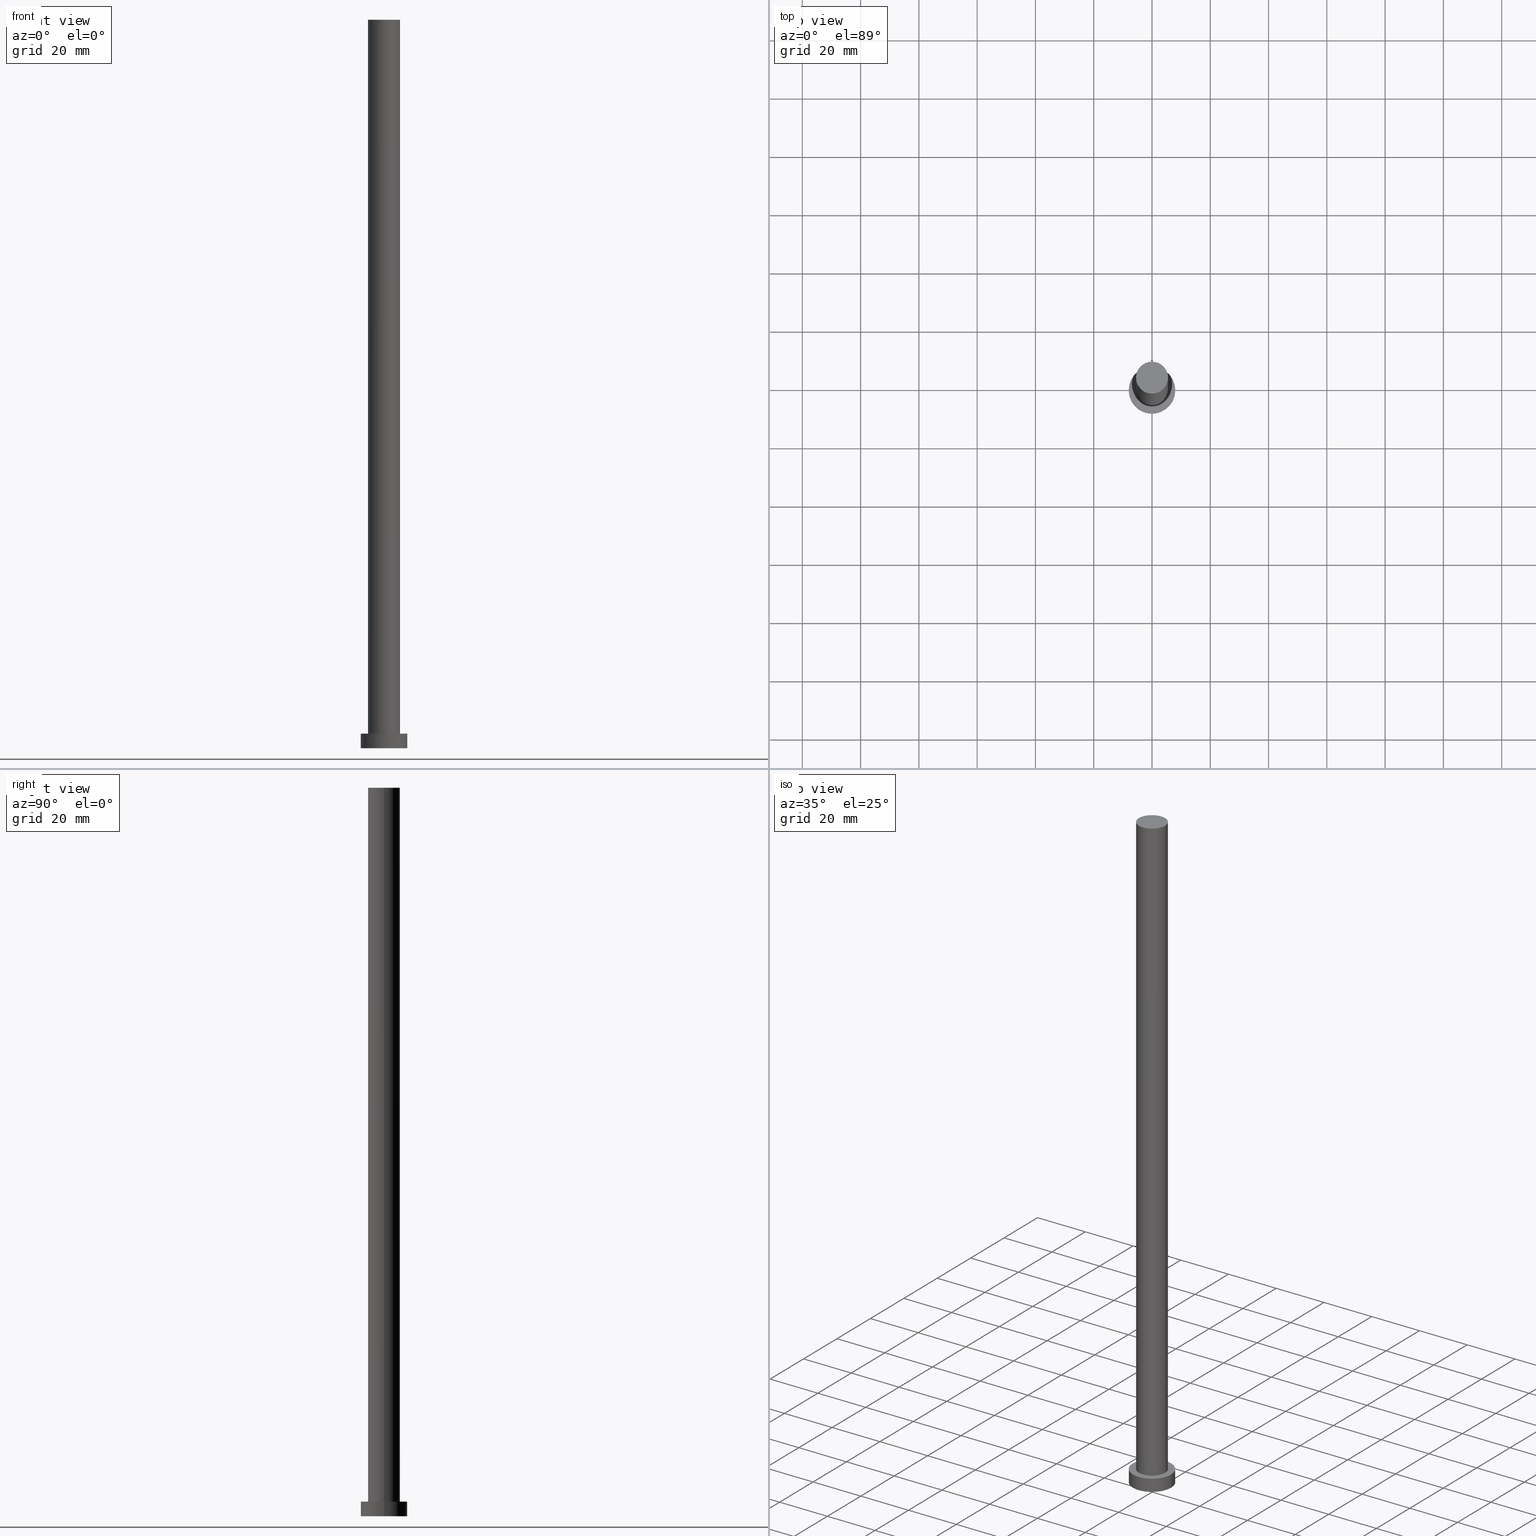
[diagram: canonical four-view strip — front | top / right | iso, engineering-drawing reading convention]
A machine part, canonical four-view strip (front | top / right | iso — engineering-drawing reading convention). The complete STEP part file that produces these views, byte-faithful:
ISO-10303-21;
HEADER;
FILE_DESCRIPTION (( 'STEP AP203' ),
    '1' );
FILE_NAME ('d49c.STEP',
    '2023-02-13T11:10:05',
    ( '' ),
    ( '' ),
    'SwSTEP 2.0',
    'SolidWorks 2019',
    '' );
FILE_SCHEMA (( 'CONFIG_CONTROL_DESIGN' ));
ENDSEC;

DATA;
#1 = AXIS2_PLACEMENT_3D ( 'NONE', #216, #196, #253 ) ;
#2 = COORDINATED_UNIVERSAL_TIME_OFFSET ( 1, 0, .AHEAD. ) ;
#3 = DIRECTION ( 'NONE',  ( -1.000000000000000000, 0.000000000000000000, 0.000000000000000000 ) ) ;
#4 = ADVANCED_FACE ( 'NONE', ( #192 ), #149, .F. ) ;
#5 = AXIS2_PLACEMENT_3D ( 'NONE', #110, #148, #72 ) ;
#6 = EDGE_CURVE ( 'NONE', #10, #141, #231, .T. ) ;
#7 = EDGE_LOOP ( 'NONE', ( #52, #203 ) ) ;
#8 = ORIENTED_EDGE ( 'NONE', *, *, #6, .T. ) ;
#9 = COORDINATED_UNIVERSAL_TIME_OFFSET ( 1, 0, .AHEAD. ) ;
#10 = VERTEX_POINT ( 'NONE', #59 ) ;
#11 = VERTEX_POINT ( 'NONE', #37 ) ;
#12 = CARTESIAN_POINT ( 'NONE',  ( -5.500000000000000000, 0.000000000000000000, 250.0000000000000000 ) ) ;
#13 = PRODUCT_DEFINITION_FORMATION_WITH_SPECIFIED_SOURCE ( 'LIBOVOLN�', '', #176, .NOT_KNOWN. ) ;
#14 = DIRECTION ( 'NONE',  ( 0.000000000000000000, 0.000000000000000000, 1.000000000000000000 ) ) ;
#15 = CARTESIAN_POINT ( 'NONE',  ( 8.000000000000000000, 9.797174393178825657E-16, 5.000000000000000000 ) ) ;
#16 = CYLINDRICAL_SURFACE ( 'NONE', #5, 5.500000000000000000 ) ;
#17 = AXIS2_PLACEMENT_3D ( 'NONE', #252, #206, #226 ) ;
#18 = CC_DESIGN_SECURITY_CLASSIFICATION ( #36, ( #13 ) ) ;
#19 = DIRECTION ( 'NONE',  ( -0.000000000000000000, -0.000000000000000000, -1.000000000000000000 ) ) ;
#20 = APPROVAL_ROLE ( '' ) ;
#21 = AXIS2_PLACEMENT_3D ( 'NONE', #93, #177, #207 ) ;
#22 = APPROVAL_PERSON_ORGANIZATION ( #200, #73, #69 ) ;
#23 = DIRECTION ( 'NONE',  ( 0.000000000000000000, 0.000000000000000000, 1.000000000000000000 ) ) ;
#24 = AXIS2_PLACEMENT_3D ( 'NONE', #225, #14, #128 ) ;
#25 = ORGANIZATION ( 'NEUR�EN�', 'NEUR�EN�', '' ) ;
#26 = ADVANCED_FACE ( 'NONE', ( #123 ), #16, .T. ) ;
#27 = DATE_TIME_ROLE ( 'classification_date' ) ;
#28 = ORIENTED_EDGE ( 'NONE', *, *, #41, .F. ) ;
#29 = ORIENTED_EDGE ( 'NONE', *, *, #116, .T. ) ;
#30 = ORIENTED_EDGE ( 'NONE', *, *, #155, .F. ) ;
#31 = CC_DESIGN_DATE_AND_TIME_ASSIGNMENT ( #51, #27, ( #36 ) ) ;
#32 = FACE_OUTER_BOUND ( 'NONE', #237, .T. ) ;
#33 = FACE_OUTER_BOUND ( 'NONE', #169, .T. ) ;
#34 = AXIS2_PLACEMENT_3D ( 'NONE', #171, #249, #130 ) ;
#35 = CARTESIAN_POINT ( 'NONE',  ( 0.000000000000000000, 0.000000000000000000, 5.000000000000000000 ) ) ;
#36 = SECURITY_CLASSIFICATION ( '', '', #103 ) ;
#37 = CARTESIAN_POINT ( 'NONE',  ( -8.000000000000000000, 0.000000000000000000, 5.000000000000000000 ) ) ;
#38 = DIRECTION ( 'NONE',  ( -0.000000000000000000, -0.000000000000000000, -1.000000000000000000 ) ) ;
#39 = DIRECTION ( 'NONE',  ( 1.000000000000000000, 0.000000000000000000, 0.000000000000000000 ) ) ;
#40 = APPROVAL_STATUS ( 'not_yet_approved' ) ;
#41 = EDGE_CURVE ( 'NONE', #104, #222, #191, .T. ) ;
#42 = PERSON_AND_ORGANIZATION ( #243, #25 ) ;
#43 = AXIS2_PLACEMENT_3D ( 'NONE', #75, #38, #248 ) ;
#44 = APPLICATION_PROTOCOL_DEFINITION ( 'international standard', 'config_control_design', 1994, #61 ) ;
#45 = CALENDAR_DATE ( 2023, 13, 2 ) ;
#46 = APPROVAL_DATE_TIME ( #162, #73 ) ;
#47 = ORIENTED_EDGE ( 'NONE', *, *, #218, .T. ) ;
#48 = COORDINATED_UNIVERSAL_TIME_OFFSET ( 1, 0, .AHEAD. ) ;
#49 = ORIENTED_EDGE ( 'NONE', *, *, #138, .F. ) ;
#50 = CC_DESIGN_APPROVAL ( #195, ( #13 ) ) ;
#51 = DATE_AND_TIME ( #238, #129 ) ;
#52 = ORIENTED_EDGE ( 'NONE', *, *, #189, .F. ) ;
#53 = PERSON_AND_ORGANIZATION_ROLE ( 'creator' ) ;
#54 = ORIENTED_EDGE ( 'NONE', *, *, #138, .T. ) ;
#55 = EDGE_CURVE ( 'NONE', #141, #145, #147, .T. ) ;
#56 = LINE ( 'NONE', #74, #68 ) ;
#57 = CARTESIAN_POINT ( 'NONE',  ( 5.500000000000000000, 6.735557395310442023E-16, 250.0000000000000000 ) ) ;
#58 = DIRECTION ( 'NONE',  ( -0.000000000000000000, -0.000000000000000000, -1.000000000000000000 ) ) ;
#59 = CARTESIAN_POINT ( 'NONE',  ( -5.500000000000000000, 0.000000000000000000, 250.0000000000000000 ) ) ;
#60 = ORIENTED_EDGE ( 'NONE', *, *, #116, .F. ) ;
#61 = APPLICATION_CONTEXT ( 'configuration controlled 3d designs of mechanical parts and assemblies' ) ;
#62 = CARTESIAN_POINT ( 'NONE',  ( 0.000000000000000000, 0.000000000000000000, 250.0000000000000000 ) ) ;
#63 = AXIS2_PLACEMENT_3D ( 'NONE', #187, #23, #198 ) ;
#64 = DIRECTION ( 'NONE',  ( 0.000000000000000000, 0.000000000000000000, 1.000000000000000000 ) ) ;
#65 = CARTESIAN_POINT ( 'NONE',  ( 0.000000000000000000, 0.000000000000000000, 5.000000000000000000 ) ) ;
#66 = CIRCLE ( 'NONE', #217, 8.000000000000000000 ) ;
#67 = ORIENTED_EDGE ( 'NONE', *, *, #95, .F. ) ;
#68 = VECTOR ( 'NONE', #151, 1000.000000000000000 ) ;
#69 = APPROVAL_ROLE ( '' ) ;
#70 = ORIENTED_EDGE ( 'NONE', *, *, #155, .T. ) ;
#71 = ORIENTED_EDGE ( 'NONE', *, *, #113, .T. ) ;
#72 = DIRECTION ( 'NONE',  ( -1.000000000000000000, 0.000000000000000000, 0.000000000000000000 ) ) ;
#73 = APPROVAL ( #140, 'NEUR�EN�' ) ;
#74 = CARTESIAN_POINT ( 'NONE',  ( -8.000000000000000000, 0.000000000000000000, 5.000000000000000000 ) ) ;
#75 = CARTESIAN_POINT ( 'NONE',  ( 0.000000000000000000, 0.000000000000000000, 5.000000000000000000 ) ) ;
#76 = CARTESIAN_POINT ( 'NONE',  ( 5.500000000000000000, 6.735557395310442023E-16, 5.000000000000000000 ) ) ;
#77 = DIRECTION ( 'NONE',  ( -0.000000000000000000, -0.000000000000000000, -1.000000000000000000 ) ) ;
#78 = CC_DESIGN_PERSON_AND_ORGANIZATION_ASSIGNMENT ( #241, #119, ( #13 ) ) ;
#79 = APPLICATION_PROTOCOL_DEFINITION ( 'international standard', 'config_control_design', 1994, #167 ) ;
#80 = DATE_TIME_ROLE ( 'creation_date' ) ;
#81 = ADVANCED_FACE ( 'NONE', ( #108 ), #208, .T. ) ;
#82 = DIRECTION ( 'NONE',  ( 0.000000000000000000, 0.000000000000000000, 1.000000000000000000 ) ) ;
#83 = DIRECTION ( 'NONE',  ( 1.000000000000000000, 0.000000000000000000, 0.000000000000000000 ) ) ;
#84 = PERSON_AND_ORGANIZATION_ROLE ( 'creator' ) ;
#85 = AXIS2_PLACEMENT_3D ( 'NONE', #233, #19, #3 ) ;
#86 = ADVANCED_FACE ( 'NONE', ( #227 ), #109, .T. ) ;
#87 = EDGE_LOOP ( 'NONE', ( #166, #186, #54, #173 ) ) ;
#88 = ORIENTED_EDGE ( 'NONE', *, *, #232, .T. ) ;
#89 = CARTESIAN_POINT ( 'NONE',  ( 0.000000000000000000, 0.000000000000000000, 0.000000000000000000 ) ) ;
#90 = CC_DESIGN_PERSON_AND_ORGANIZATION_ASSIGNMENT ( #220, #101, ( #36 ) ) ;
#91 = DIRECTION ( 'NONE',  ( 1.000000000000000000, 0.000000000000000000, 0.000000000000000000 ) ) ;
#92 = DIRECTION ( 'NONE',  ( -0.000000000000000000, -0.000000000000000000, -1.000000000000000000 ) ) ;
#93 = CARTESIAN_POINT ( 'NONE',  ( 0.000000000000000000, 0.000000000000000000, 5.000000000000000000 ) ) ;
#94 = DIRECTION ( 'NONE',  ( 1.000000000000000000, 0.000000000000000000, 0.000000000000000000 ) ) ;
#95 = EDGE_CURVE ( 'NONE', #11, #104, #122, .T. ) ;
#96 = ADVANCED_BREP_SHAPE_REPRESENTATION ( 'd49c', ( #154, #1 ), #135 ) ;
#97 = LOCAL_TIME ( 12, 10, 5.000000000000000000, #2 ) ;
#98 = COORDINATED_UNIVERSAL_TIME_OFFSET ( 1, 0, .AHEAD. ) ;
#99 = CIRCLE ( 'NONE', #63, 5.500000000000000000 ) ;
#100 = PERSON_AND_ORGANIZATION ( #243, #25 ) ;
#101 = PERSON_AND_ORGANIZATION_ROLE ( 'classification_officer' ) ;
#102 = EDGE_LOOP ( 'NONE', ( #205, #239 ) ) ;
#103 = SECURITY_CLASSIFICATION_LEVEL ( 'unclassified' ) ;
#104 = VERTEX_POINT ( 'NONE', #15 ) ;
#105 = CIRCLE ( 'NONE', #224, 5.500000000000000000 ) ;
#106 = DIRECTION ( 'NONE',  ( -1.000000000000000000, 0.000000000000000000, 0.000000000000000000 ) ) ;
#107 = PLANE ( 'NONE',  #17 ) ;
#108 = FACE_OUTER_BOUND ( 'NONE', #143, .T. ) ;
#109 = PLANE ( 'NONE',  #24 ) ;
#110 = CARTESIAN_POINT ( 'NONE',  ( 0.000000000000000000, 0.000000000000000000, 250.0000000000000000 ) ) ;
#111 = CARTESIAN_POINT ( 'NONE',  ( -5.500000000000000000, 0.000000000000000000, 5.000000000000000000 ) ) ;
#112 = AXIS2_PLACEMENT_3D ( 'NONE', #65, #64, #83 ) ;
#113 = EDGE_CURVE ( 'NONE', #222, #201, #172, .T. ) ;
#114 = DATE_AND_TIME ( #255, #251 ) ;
#115 = DATE_AND_TIME ( #234, #97 ) ;
#116 = EDGE_CURVE ( 'NONE', #104, #11, #184, .T. ) ;
#117 = PERSON_AND_ORGANIZATION ( #243, #25 ) ;
#118 = CIRCLE ( 'NONE', #112, 5.500000000000000000 ) ;
#119 = PERSON_AND_ORGANIZATION_ROLE ( 'design_supplier' ) ;
#120 = EDGE_LOOP ( 'NONE', ( #8, #47 ) ) ;
#121 = ORIENTED_EDGE ( 'NONE', *, *, #41, .T. ) ;
#122 = CIRCLE ( 'NONE', #150, 8.000000000000000000 ) ;
#123 = FACE_OUTER_BOUND ( 'NONE', #87, .T. ) ;
#124 = CC_DESIGN_PERSON_AND_ORGANIZATION_ASSIGNMENT ( #117, #53, ( #13 ) ) ;
#125 = DIRECTION ( 'NONE',  ( 0.000000000000000000, 0.000000000000000000, 1.000000000000000000 ) ) ;
#126 = LINE ( 'NONE', #12, #156 ) ;
#127 = VECTOR ( 'NONE', #210, 1000.000000000000000 ) ;
#128 = DIRECTION ( 'NONE',  ( 1.000000000000000000, 0.000000000000000000, -0.000000000000000000 ) ) ;
#129 = LOCAL_TIME ( 12, 10, 5.000000000000000000, #48 ) ;
#130 = DIRECTION ( 'NONE',  ( 1.000000000000000000, 0.000000000000000000, -0.000000000000000000 ) ) ;
#131 = DIRECTION ( 'NONE',  ( 0.000000000000000000, 0.000000000000000000, 1.000000000000000000 ) ) ;
#132 = DESIGN_CONTEXT ( 'detailed design', #61, 'design' ) ;
#133 = ADVANCED_FACE ( 'NONE', ( #250, #33 ), #107, .T. ) ;
#134 = FACE_OUTER_BOUND ( 'NONE', #223, .T. ) ;
#135 =( GEOMETRIC_REPRESENTATION_CONTEXT ( 3 ) GLOBAL_UNCERTAINTY_ASSIGNED_CONTEXT ( ( #160 ) ) GLOBAL_UNIT_ASSIGNED_CONTEXT ( ( #153, #229, #137 ) ) REPRESENTATION_CONTEXT ( 'NONE', 'WORKASPACE' ) );
#136 = PRODUCT_DEFINITION_SHAPE ( 'NONE', 'NONE',  #163 ) ;
#137 =( NAMED_UNIT ( * ) SI_UNIT ( $, .STERADIAN. ) SOLID_ANGLE_UNIT ( ) );
#138 = EDGE_CURVE ( 'NONE', #10, #242, #126, .T. ) ;
#139 = CC_DESIGN_APPROVAL ( #73, ( #36 ) ) ;
#140 = APPROVAL_STATUS ( 'not_yet_approved' ) ;
#141 = VERTEX_POINT ( 'NONE', #190 ) ;
#142 = CC_DESIGN_PERSON_AND_ORGANIZATION_ASSIGNMENT ( #100, #84, ( #163 ) ) ;
#143 = EDGE_LOOP ( 'NONE', ( #28, #67, #70, #219 ) ) ;
#144 = CLOSED_SHELL ( 'NONE', ( #215, #178, #81, #133, #4, #26, #86 ) ) ;
#145 = VERTEX_POINT ( 'NONE', #76 ) ;
#146 = APPROVAL_PERSON_ORGANIZATION ( #230, #247, #179 ) ;
#147 = LINE ( 'NONE', #57, #127 ) ;
#148 = DIRECTION ( 'NONE',  ( -0.000000000000000000, -0.000000000000000000, -1.000000000000000000 ) ) ;
#149 = PLANE ( 'NONE',  #34 ) ;
#150 = AXIS2_PLACEMENT_3D ( 'NONE', #188, #175, #94 ) ;
#151 = DIRECTION ( 'NONE',  ( -0.000000000000000000, -0.000000000000000000, -1.000000000000000000 ) ) ;
#152 = DIRECTION ( 'NONE',  ( 0.000000000000000000, 0.000000000000000000, 1.000000000000000000 ) ) ;
#153 =( LENGTH_UNIT ( ) NAMED_UNIT ( * ) SI_UNIT ( .MILLI., .METRE. ) );
#154 = MANIFOLD_SOLID_BREP ( 'P�idat vysunut�m3', #144 ) ;
#155 = EDGE_CURVE ( 'NONE', #11, #201, #56, .T. ) ;
#156 = VECTOR ( 'NONE', #77, 1000.000000000000000 ) ;
#157 = CYLINDRICAL_SURFACE ( 'NONE', #85, 5.500000000000000000 ) ;
#158 = LOCAL_TIME ( 12, 10, 5.000000000000000000, #98 ) ;
#159 = MECHANICAL_CONTEXT ( 'NONE', #167, 'mechanical' ) ;
#160 = UNCERTAINTY_MEASURE_WITH_UNIT (LENGTH_MEASURE( 1.000000000000000082E-05 ), #153, 'distance_accuracy_value', 'NONE');
#161 = DIRECTION ( 'NONE',  ( 1.000000000000000000, 0.000000000000000000, 0.000000000000000000 ) ) ;
#162 = DATE_AND_TIME ( #45, #168 ) ;
#163 = PRODUCT_DEFINITION ( 'NEZN�M�', '', #13, #132 ) ;
#164 = ORIENTED_EDGE ( 'NONE', *, *, #95, .T. ) ;
#165 = DATE_AND_TIME ( #180, #158 ) ;
#166 = ORIENTED_EDGE ( 'NONE', *, *, #55, .F. ) ;
#167 = APPLICATION_CONTEXT ( 'configuration controlled 3d designs of mechanical parts and assemblies' ) ;
#168 = LOCAL_TIME ( 12, 10, 5.000000000000000000, #9 ) ;
#169 = EDGE_LOOP ( 'NONE', ( #164, #29 ) ) ;
#170 = CC_DESIGN_DATE_AND_TIME_ASSIGNMENT ( #114, #80, ( #163 ) ) ;
#171 = CARTESIAN_POINT ( 'NONE',  ( 0.000000000000000000, 0.000000000000000000, 0.000000000000000000 ) ) ;
#172 = CIRCLE ( 'NONE', #202, 8.000000000000000000 ) ;
#173 = ORIENTED_EDGE ( 'NONE', *, *, #189, .T. ) ;
#174 = CARTESIAN_POINT ( 'NONE',  ( 8.000000000000000000, 9.797174393178825657E-16, 5.000000000000000000 ) ) ;
#175 = DIRECTION ( 'NONE',  ( 0.000000000000000000, 0.000000000000000000, 1.000000000000000000 ) ) ;
#176 = PRODUCT ( 'd49c', 'd49c', '', ( #159 ) ) ;
#177 = DIRECTION ( 'NONE',  ( 0.000000000000000000, 0.000000000000000000, 1.000000000000000000 ) ) ;
#178 = ADVANCED_FACE ( 'NONE', ( #32 ), #228, .T. ) ;
#179 = APPROVAL_ROLE ( '' ) ;
#180 = CALENDAR_DATE ( 2023, 13, 2 ) ;
#181 = PERSON_AND_ORGANIZATION_ROLE ( 'design_owner' ) ;
#182 = PERSON_AND_ORGANIZATION ( #243, #25 ) ;
#183 = APPROVAL_DATE_TIME ( #165, #195 ) ;
#184 = CIRCLE ( 'NONE', #21, 8.000000000000000000 ) ;
#185 = SHAPE_DEFINITION_REPRESENTATION ( #136, #96 ) ;
#186 = ORIENTED_EDGE ( 'NONE', *, *, #6, .F. ) ;
#187 = CARTESIAN_POINT ( 'NONE',  ( 0.000000000000000000, 0.000000000000000000, 5.000000000000000000 ) ) ;
#188 = CARTESIAN_POINT ( 'NONE',  ( 0.000000000000000000, 0.000000000000000000, 5.000000000000000000 ) ) ;
#189 = EDGE_CURVE ( 'NONE', #242, #145, #99, .T. ) ;
#190 = CARTESIAN_POINT ( 'NONE',  ( 5.500000000000000000, 6.735557395310442023E-16, 250.0000000000000000 ) ) ;
#191 = LINE ( 'NONE', #174, #235 ) ;
#192 = FACE_OUTER_BOUND ( 'NONE', #102, .T. ) ;
#193 = CARTESIAN_POINT ( 'NONE',  ( -8.000000000000000000, 0.000000000000000000, 0.000000000000000000 ) ) ;
#194 = AXIS2_PLACEMENT_3D ( 'NONE', #35, #92, #106 ) ;
#195 = APPROVAL ( #197, 'NEUR�EN�' ) ;
#196 = DIRECTION ( 'NONE',  ( 0.000000000000000000, 0.000000000000000000, 1.000000000000000000 ) ) ;
#197 = APPROVAL_STATUS ( 'not_yet_approved' ) ;
#198 = DIRECTION ( 'NONE',  ( 1.000000000000000000, 0.000000000000000000, 0.000000000000000000 ) ) ;
#199 = CARTESIAN_POINT ( 'NONE',  ( 8.000000000000000000, 9.797174393178825657E-16, 0.000000000000000000 ) ) ;
#200 = PERSON_AND_ORGANIZATION ( #243, #25 ) ;
#201 = VERTEX_POINT ( 'NONE', #193 ) ;
#202 = AXIS2_PLACEMENT_3D ( 'NONE', #89, #125, #209 ) ;
#203 = ORIENTED_EDGE ( 'NONE', *, *, #232, .F. ) ;
#204 = ORIENTED_EDGE ( 'NONE', *, *, #218, .F. ) ;
#205 = ORIENTED_EDGE ( 'NONE', *, *, #211, .F. ) ;
#206 = DIRECTION ( 'NONE',  ( 0.000000000000000000, 0.000000000000000000, 1.000000000000000000 ) ) ;
#207 = DIRECTION ( 'NONE',  ( 1.000000000000000000, 0.000000000000000000, 0.000000000000000000 ) ) ;
#208 = CYLINDRICAL_SURFACE ( 'NONE', #43, 8.000000000000000000 ) ;
#209 = DIRECTION ( 'NONE',  ( 1.000000000000000000, 0.000000000000000000, 0.000000000000000000 ) ) ;
#210 = DIRECTION ( 'NONE',  ( -0.000000000000000000, -0.000000000000000000, -1.000000000000000000 ) ) ;
#211 = EDGE_CURVE ( 'NONE', #201, #222, #66, .T. ) ;
#212 = COORDINATED_UNIVERSAL_TIME_OFFSET ( 1, 0, .AHEAD. ) ;
#213 = CARTESIAN_POINT ( 'NONE',  ( 0.000000000000000000, 0.000000000000000000, 0.000000000000000000 ) ) ;
#214 = APPROVAL_DATE_TIME ( #115, #247 ) ;
#215 = ADVANCED_FACE ( 'NONE', ( #134 ), #157, .T. ) ;
#216 = CARTESIAN_POINT ( 'NONE',  ( 0.000000000000000000, 0.000000000000000000, 0.000000000000000000 ) ) ;
#217 = AXIS2_PLACEMENT_3D ( 'NONE', #213, #82, #39 ) ;
#218 = EDGE_CURVE ( 'NONE', #141, #10, #105, .T. ) ;
#219 = ORIENTED_EDGE ( 'NONE', *, *, #211, .T. ) ;
#220 = PERSON_AND_ORGANIZATION ( #243, #25 ) ;
#221 = ORIENTED_EDGE ( 'NONE', *, *, #55, .T. ) ;
#222 = VERTEX_POINT ( 'NONE', #199 ) ;
#223 = EDGE_LOOP ( 'NONE', ( #204, #221, #88, #49 ) ) ;
#224 = AXIS2_PLACEMENT_3D ( 'NONE', #62, #131, #161 ) ;
#225 = CARTESIAN_POINT ( 'NONE',  ( 0.000000000000000000, 0.000000000000000000, 250.0000000000000000 ) ) ;
#226 = DIRECTION ( 'NONE',  ( 1.000000000000000000, 0.000000000000000000, -0.000000000000000000 ) ) ;
#227 = FACE_OUTER_BOUND ( 'NONE', #120, .T. ) ;
#228 = CYLINDRICAL_SURFACE ( 'NONE', #194, 8.000000000000000000 ) ;
#229 =( NAMED_UNIT ( * ) PLANE_ANGLE_UNIT ( ) SI_UNIT ( $, .RADIAN. ) );
#230 = PERSON_AND_ORGANIZATION ( #243, #25 ) ;
#231 = CIRCLE ( 'NONE', #244, 5.500000000000000000 ) ;
#232 = EDGE_CURVE ( 'NONE', #145, #242, #118, .T. ) ;
#233 = CARTESIAN_POINT ( 'NONE',  ( 0.000000000000000000, 0.000000000000000000, 250.0000000000000000 ) ) ;
#234 = CALENDAR_DATE ( 2023, 13, 2 ) ;
#235 = VECTOR ( 'NONE', #58, 1000.000000000000000 ) ;
#236 = PRODUCT_RELATED_PRODUCT_CATEGORY ( 'detail', '', ( #176 ) ) ;
#237 = EDGE_LOOP ( 'NONE', ( #60, #121, #71, #30 ) ) ;
#238 = CALENDAR_DATE ( 2023, 13, 2 ) ;
#239 = ORIENTED_EDGE ( 'NONE', *, *, #113, .F. ) ;
#240 = CC_DESIGN_APPROVAL ( #247, ( #163 ) ) ;
#241 = PERSON_AND_ORGANIZATION ( #243, #25 ) ;
#242 = VERTEX_POINT ( 'NONE', #111 ) ;
#243 = PERSON ( 'NEUR�EN�', 'NEUR�EN�', 'NEUR�EN�', ('NEUR�EN�'), ('NEUR�EN�'), ('NEUR�EN�') ) ;
#244 = AXIS2_PLACEMENT_3D ( 'NONE', #245, #152, #91 ) ;
#245 = CARTESIAN_POINT ( 'NONE',  ( 0.000000000000000000, 0.000000000000000000, 250.0000000000000000 ) ) ;
#246 = APPROVAL_PERSON_ORGANIZATION ( #42, #195, #20 ) ;
#247 = APPROVAL ( #40, 'NEUR�EN�' ) ;
#248 = DIRECTION ( 'NONE',  ( -1.000000000000000000, 0.000000000000000000, 0.000000000000000000 ) ) ;
#249 = DIRECTION ( 'NONE',  ( 0.000000000000000000, 0.000000000000000000, 1.000000000000000000 ) ) ;
#250 = FACE_BOUND ( 'NONE', #7, .T. ) ;
#251 = LOCAL_TIME ( 12, 10, 5.000000000000000000, #212 ) ;
#252 = CARTESIAN_POINT ( 'NONE',  ( 0.000000000000000000, 0.000000000000000000, 5.000000000000000000 ) ) ;
#253 = DIRECTION ( 'NONE',  ( 1.000000000000000000, 0.000000000000000000, 0.000000000000000000 ) ) ;
#254 = CC_DESIGN_PERSON_AND_ORGANIZATION_ASSIGNMENT ( #182, #181, ( #176 ) ) ;
#255 = CALENDAR_DATE ( 2023, 13, 2 ) ;
ENDSEC;
END-ISO-10303-21;
